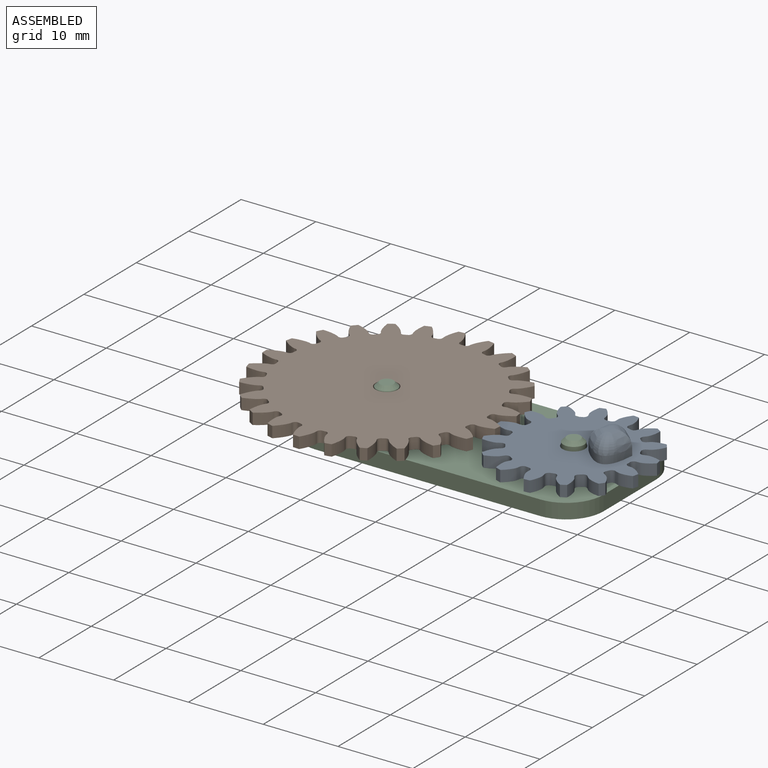
[diagram: assembled view]
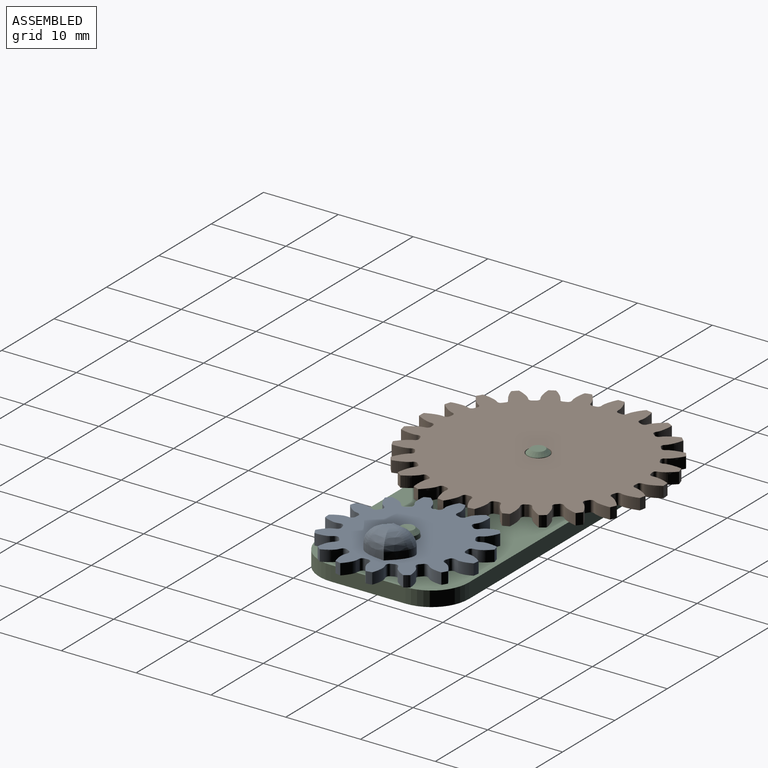
[diagram: assembled view, second angle]
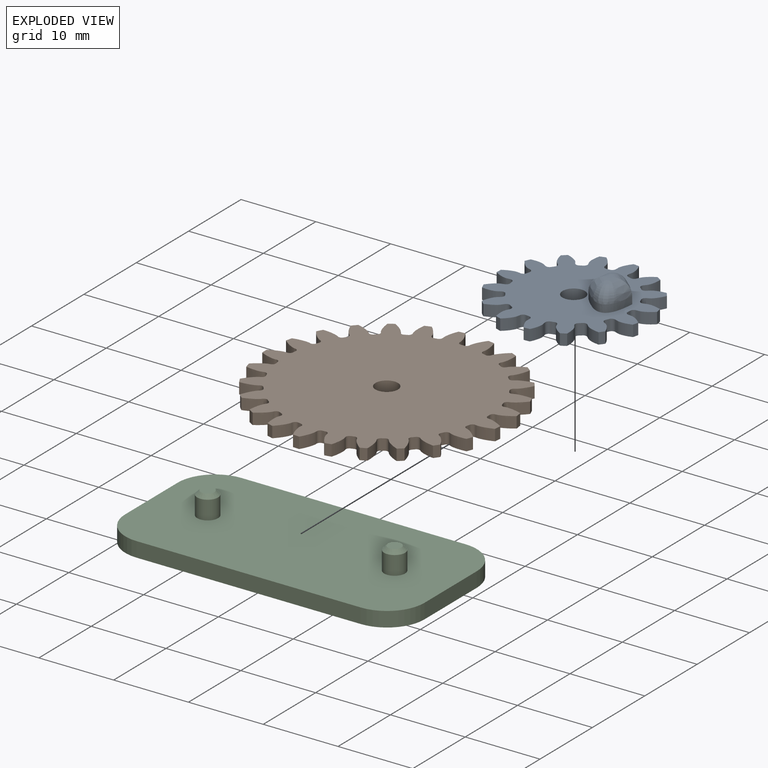
[diagram: exploded view]
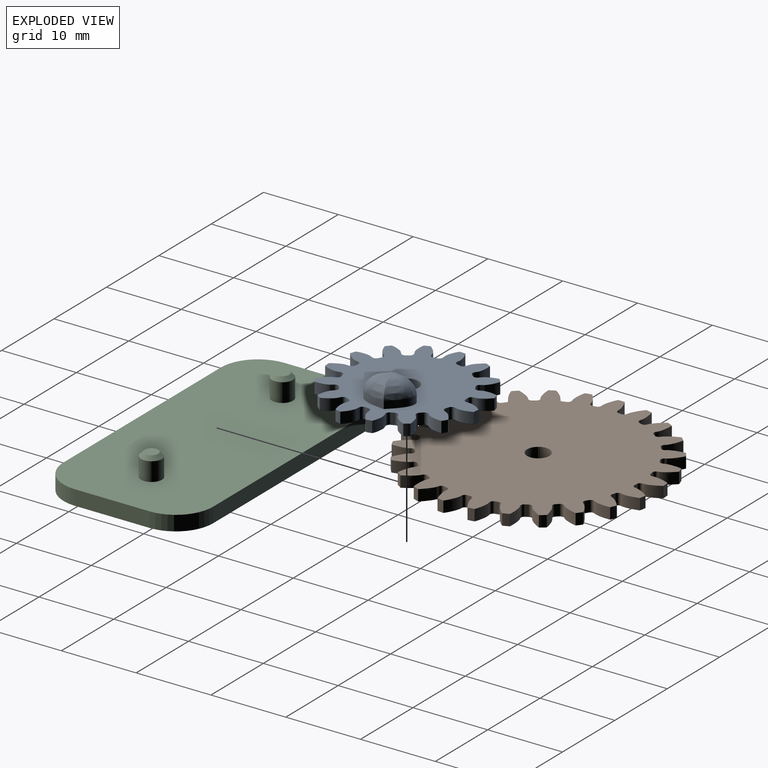
[diagram: exploded view, second angle]
ASSEMBLY  parts=3 mates=2
PART A: 102 faces, bbox 20.3x4.5x20.4 mm
  f0: plane 20.36x20.25mm, normal (0,1,0), area 220mm2, adj f1,f2,f3,f4,f5,f6,f7,f8
  f1: cylinder r=10.2mm len=1.5mm, axis (0,1,0), area 1.2mm2, adj f0,f15,f84,f88
  f2: cylinder r=10.2mm len=1.5mm, axis (0,1,0), area 1.2mm2, adj f0,f15,f74,f83
  f3: cylinder r=10.2mm len=1.5mm, axis (0,1,0), area 1.2mm2, adj f0,f15,f19,f78
  f4: cylinder r=10.2mm len=1.5mm, axis (0,1,0), area 1.2mm2, adj f0,f15,f73,f79
  f5: cylinder r=10.2mm len=1.5mm, axis (0,1,0), area 1.2mm2, adj f0,f15,f64,f68
  f6: cylinder r=10.2mm len=1.5mm, axis (0,1,0), area 1.2mm2, adj f0,f15,f63,f89
  f7: cylinder r=10.2mm len=1.5mm, axis (0,1,0), area 1.2mm2, adj f0,f15,f58,f69
  f8: cylinder r=10.2mm len=1.5mm, axis (0,1,0), area 1.2mm2, adj f0,f15,f53,f59
  f9: cylinder r=10.2mm len=1.5mm, axis (0,1,0), area 1.2mm2, adj f0,f15,f39,f48
  f10: cylinder r=10.2mm len=1.5mm, axis (0,1,0), area 1.2mm2, adj f0,f15,f43,f49
  f11: cylinder r=10.2mm len=1.5mm, axis (0,1,0), area 1.2mm2, adj f0,f15,f34,f38
  f12: cylinder r=10.2mm len=1.5mm, axis (0,1,0), area 1.2mm2, adj f0,f15,f24,f33
  f13: cylinder r=10.2mm len=1.5mm, axis (0,1,0), area 1.2mm2, adj f0,f15,f28,f54
  f14: cylinder r=10.2mm len=1.5mm, axis (0,1,0), area 1.2mm2, adj f0,f15,f23,f29
  f15: plane 20.36x20.25mm, normal (0,-1,0), area 240mm2, adj f1,f2,f3,f4,f5,f6,f7,f8
  f16: cylinder r=1.5mm len=3mm, axis (0,1,0), area 14.1mm2, adj f0,f15
  f17: cylinder r=10.2mm len=1.5mm, axis (0,1,0), area 1.2mm2, adj f0,f15,f18,f44
  f18: extruded ~2.11x1.5mm, area 3.6mm2, adj f0,f15,f17,f22
  f19: extruded ~2.11x1.5mm, area 3.6mm2, adj f0,f3,f15,f21
  f20: cylinder r=7.5mm len=1.5mm, axis (0,1,0), area 0.6mm2, adj f0,f15,f21,f22
  f21: cylinder r=0.49mm len=1.5mm, axis (0,1,0), area 1.1mm2, adj f0,f15,f19,f20
  f22: cylinder r=0.49mm len=1.5mm, axis (0,1,0), area 1.1mm2, adj f0,f15,f18,f20
  f23: extruded ~1.94x1.5mm, area 3.6mm2, adj f0,f14,f15,f27
  f24: extruded ~2.33x1.5mm, area 3.6mm2, adj f0,f12,f15,f26
  f25: cylinder r=7.5mm len=1.5mm, axis (0,1,0), area 0.6mm2, adj f0,f15,f26,f27
  f26: cylinder r=0.49mm len=1.5mm, axis (0,1,0), area 1.1mm2, adj f0,f15,f24,f25
  f27: cylinder r=0.49mm len=1.5mm, axis (0,1,0), area 1.1mm2, adj f0,f15,f23,f25
  f28: extruded ~2.3x1.5mm, area 3.6mm2, adj f0,f13,f15,f32
  f29: extruded ~2.06x1.5mm, area 3.6mm2, adj f0,f14,f15,f31
  f30: cylinder r=7.5mm len=1.5mm, axis (0,1,0), area 0.6mm2, adj f0,f15,f31,f32
  f31: cylinder r=0.49mm len=1.5mm, axis (0,1,0), area 1.1mm2, adj f0,f15,f29,f30
  f32: cylinder r=0.49mm len=1.5mm, axis (0,1,0), area 1.1mm2, adj f0,f15,f28,f30
  f33: extruded ~1.99x1.5mm, area 3.6mm2, adj f0,f12,f15,f37
  f34: extruded ~2.2x1.5mm, area 3.6mm2, adj f0,f11,f15,f36
  f35: cylinder r=7.5mm len=1.5mm, axis (0,1,0), area 0.6mm2, adj f0,f15,f36,f37
  f36: cylinder r=0.49mm len=1.5mm, axis (0,1,0), area 1.1mm2, adj f0,f15,f34,f35
  f37: cylinder r=0.49mm len=1.5mm, axis (0,1,0), area 1.1mm2, adj f0,f15,f33,f35
  f38: extruded ~2.32x1.5mm, area 3.6mm2, adj f0,f11,f15,f42
  f39: extruded ~1.69x1.62mm, area 3.6mm2, adj f0,f9,f15,f41
  f40: cylinder r=7.5mm len=1.5mm, axis (0,1,0), area 0.6mm2, adj f0,f15,f41,f42
  f41: cylinder r=0.49mm len=1.5mm, axis (0,1,0), area 1.1mm2, adj f0,f15,f39,f40
  f42: cylinder r=0.49mm len=1.5mm, axis (0,1,0), area 1.1mm2, adj f0,f15,f38,f40
  f43: extruded ~1.79x1.51mm, area 3.6mm2, adj f0,f10,f15,f47
  f44: extruded ~2.34x1.5mm, area 3.6mm2, adj f0,f15,f17,f46
  f45: cylinder r=7.5mm len=1.5mm, axis (0,1,0), area 0.6mm2, adj f0,f15,f46,f47
  f46: cylinder r=0.49mm len=1.5mm, axis (0,1,0), area 1.1mm2, adj f0,f15,f44,f45
  f47: cylinder r=0.49mm len=1.5mm, axis (0,1,0), area 1.1mm2, adj f0,f15,f43,f45
  f48: extruded ~2.25x1.5mm, area 3.6mm2, adj f0,f9,f15,f52
  f49: extruded ~2.17x1.5mm, area 3.6mm2, adj f0,f10,f15,f51
  f50: cylinder r=7.5mm len=1.5mm, axis (0,1,0), area 0.6mm2, adj f0,f15,f51,f52
  f51: cylinder r=0.49mm len=1.5mm, axis (0,1,0), area 1.1mm2, adj f0,f15,f49,f50
  f52: cylinder r=0.49mm len=1.5mm, axis (0,1,0), area 1.1mm2, adj f0,f15,f48,f50
  f53: extruded ~2.27x1.5mm, area 3.6mm2, adj f0,f8,f15,f57
  f54: extruded ~1.85x1.5mm, area 3.6mm2, adj f0,f13,f15,f56
  f55: cylinder r=7.5mm len=1.5mm, axis (0,1,0), area 0.6mm2, adj f0,f15,f56,f57
  f56: cylinder r=0.49mm len=1.5mm, axis (0,1,0), area 1.1mm2, adj f0,f15,f54,f55
  f57: cylinder r=0.49mm len=1.5mm, axis (0,1,0), area 1.1mm2, adj f0,f15,f53,f55
  f58: extruded ~1.85x1.5mm, area 3.6mm2, adj f0,f7,f15,f62
  f59: extruded ~2.27x1.5mm, area 3.6mm2, adj f0,f8,f15,f61
  f60: cylinder r=7.5mm len=1.5mm, axis (0,1,0), area 0.6mm2, adj f0,f15,f61,f62
  f61: cylinder r=0.49mm len=1.5mm, axis (0,1,0), area 1.1mm2, adj f0,f15,f59,f60
  f62: cylinder r=0.49mm len=1.5mm, axis (0,1,0), area 1.1mm2, adj f0,f15,f58,f60
  f63: extruded ~2.33x1.5mm, area 3.6mm2, adj f0,f6,f15,f67
  f64: extruded ~1.94x1.5mm, area 3.6mm2, adj f0,f5,f15,f66
  f65: cylinder r=7.5mm len=1.5mm, axis (0,1,0), area 0.6mm2, adj f0,f15,f66,f67
  f66: cylinder r=0.49mm len=1.5mm, axis (0,1,0), area 1.1mm2, adj f0,f15,f64,f65
  f67: cylinder r=0.49mm len=1.5mm, axis (0,1,0), area 1.1mm2, adj f0,f15,f63,f65
  f68: extruded ~2.06x1.5mm, area 3.6mm2, adj f0,f5,f15,f72
  f69: extruded ~2.3x1.5mm, area 3.6mm2, adj f0,f7,f15,f71
  f70: cylinder r=7.5mm len=1.5mm, axis (0,1,0), area 0.6mm2, adj f0,f15,f71,f72
  f71: cylinder r=0.49mm len=1.5mm, axis (0,1,0), area 1.1mm2, adj f0,f15,f69,f70
  f72: cylinder r=0.49mm len=1.5mm, axis (0,1,0), area 1.1mm2, adj f0,f15,f68,f70
  f73: extruded ~2.17x1.5mm, area 3.6mm2, adj f0,f4,f15,f77
  f74: extruded ~2.25x1.5mm, area 3.6mm2, adj f0,f2,f15,f76
  f75: cylinder r=7.5mm len=1.5mm, axis (0,1,0), area 0.6mm2, adj f0,f15,f76,f77
  f76: cylinder r=0.49mm len=1.5mm, axis (0,1,0), area 1.1mm2, adj f0,f15,f74,f75
  f77: cylinder r=0.49mm len=1.5mm, axis (0,1,0), area 1.1mm2, adj f0,f15,f73,f75
  f78: extruded ~2.34x1.5mm, area 3.6mm2, adj f0,f3,f15,f82
  f79: extruded ~1.79x1.51mm, area 3.6mm2, adj f0,f4,f15,f81
  f80: cylinder r=7.5mm len=1.5mm, axis (0,1,0), area 0.6mm2, adj f0,f15,f81,f82
  f81: cylinder r=0.49mm len=1.5mm, axis (0,1,0), area 1.1mm2, adj f0,f15,f79,f80
  f82: cylinder r=0.49mm len=1.5mm, axis (0,1,0), area 1.1mm2, adj f0,f15,f78,f80
  f83: extruded ~1.69x1.62mm, area 3.6mm2, adj f0,f2,f15,f87
  f84: extruded ~2.32x1.5mm, area 3.6mm2, adj f0,f1,f15,f86
  f85: cylinder r=7.5mm len=1.5mm, axis (0,1,0), area 0.6mm2, adj f0,f15,f86,f87
  f86: cylinder r=0.49mm len=1.5mm, axis (0,1,0), area 1.1mm2, adj f0,f15,f84,f85
  f87: cylinder r=0.49mm len=1.5mm, axis (0,1,0), area 1.1mm2, adj f0,f15,f83,f85
  f88: extruded ~2.2x1.5mm, area 3.6mm2, adj f0,f1,f15,f92
  f89: extruded ~1.99x1.5mm, area 3.6mm2, adj f0,f6,f15,f91
  f90: cylinder r=7.5mm len=1.5mm, axis (0,1,0), area 0.6mm2, adj f0,f15,f91,f92
  f91: cylinder r=0.49mm len=1.5mm, axis (0,1,0), area 1.1mm2, adj f0,f15,f89,f90
  f92: cylinder r=0.49mm len=1.5mm, axis (0,1,0), area 1.1mm2, adj f0,f15,f88,f90
  f93: extruded ~4.7x3.74mm, area 8.2mm2, adj f0,f94,f98,f100,f101
  f94: extruded ~4.7x3.74mm, area 8.2mm2, adj f0,f93,f96,f97,f99
  f95: plane 1.05x0.58mm, normal (0,1,0), area 0.4mm2, adj f96,f98,f99,f101
  f96: bspline ~3.2x3.1mm, area 4.8mm2, adj f94,f95,f97,f98
  f97: bspline ~2.64x2.54mm, area 4.3mm2, adj f94,f96,f99
  f98: bspline ~3.03x2.33mm, area 4.8mm2, adj f93,f95,f96,f100
  f99: bspline ~3.7x2.35mm, area 4.8mm2, adj f94,f95,f97,f101
  f100: bspline ~2.64x2.54mm, area 4.3mm2, adj f93,f98,f101
  f101: bspline ~3.3x3.19mm, area 4.8mm2, adj f93,f95,f99,f100
PART B: 153 faces, bbox 32.3x1.5x32.4 mm
  f0: cylinder r=16.2mm len=1.5mm, axis (0,1,0), area 1.3mm2, adj f24,f27,f139,f148
  f1: cylinder r=16.2mm len=1.5mm, axis (0,1,0), area 1.3mm2, adj f24,f27,f143,f149
  f2: cylinder r=16.2mm len=1.5mm, axis (0,1,0), area 1.3mm2, adj f24,f27,f134,f138
  f3: cylinder r=16.2mm len=1.5mm, axis (0,1,0), area 1.3mm2, adj f24,f27,f129,f133
  f4: cylinder r=16.2mm len=1.5mm, axis (0,1,0), area 1.3mm2, adj f24,f27,f124,f128
  f5: cylinder r=16.2mm len=1.5mm, axis (0,1,0), area 1.3mm2, adj f24,f27,f114,f123
  f6: cylinder r=16.2mm len=1.5mm, axis (0,1,0), area 1.3mm2, adj f24,f27,f109,f118
  f7: cylinder r=16.2mm len=1.5mm, axis (0,1,0), area 1.3mm2, adj f24,f27,f113,f119
  f8: cylinder r=16.2mm len=1.5mm, axis (0,1,0), area 1.3mm2, adj f24,f27,f104,f108
  f9: cylinder r=16.2mm len=1.5mm, axis (0,1,0), area 1.3mm2, adj f24,f27,f99,f103
  f10: cylinder r=16.2mm len=1.5mm, axis (0,1,0), area 1.3mm2, adj f24,f27,f94,f98
  f11: cylinder r=16.2mm len=1.5mm, axis (0,1,0), area 1.3mm2, adj f24,f27,f79,f93
  f12: cylinder r=16.2mm len=1.5mm, axis (0,1,0), area 1.3mm2, adj f24,f27,f29,f88
  f13: cylinder r=16.2mm len=1.5mm, axis (0,1,0), area 1.3mm2, adj f24,f27,f83,f89
  f14: cylinder r=16.2mm len=1.5mm, axis (0,1,0), area 1.3mm2, adj f24,f27,f74,f78
  f15: cylinder r=16.2mm len=1.5mm, axis (0,1,0), area 1.3mm2, adj f24,f27,f73,f84
  f16: cylinder r=16.2mm len=1.5mm, axis (0,1,0), area 1.3mm2, adj f24,f27,f68,f144
  f17: cylinder r=16.2mm len=1.5mm, axis (0,1,0), area 1.3mm2, adj f24,f27,f63,f69
  f18: cylinder r=16.2mm len=1.5mm, axis (0,1,0), area 1.3mm2, adj f24,f27,f58,f64
  f19: cylinder r=16.2mm len=1.5mm, axis (0,1,0), area 1.3mm2, adj f24,f27,f53,f59
  f20: cylinder r=16.2mm len=1.5mm, axis (0,1,0), area 1.3mm2, adj f24,f27,f44,f48
  f21: cylinder r=16.2mm len=1.5mm, axis (0,1,0), area 1.3mm2, adj f24,f27,f34,f43
  f22: cylinder r=16.2mm len=1.5mm, axis (0,1,0), area 1.3mm2, adj f24,f27,f38,f54
  f23: cylinder r=16.2mm len=1.5mm, axis (0,1,0), area 1.3mm2, adj f24,f27,f33,f39
  f24: plane 32.38x32.32mm, normal (0,-1,0), area 689.3mm2, adj f0,f1,f2,f3,f4,f5,f6,f7
  f25: cylinder r=1.5mm len=3mm, axis (0,1,0), area 14.1mm2, adj f24,f27
  f26: cylinder r=16.2mm len=1.5mm, axis (0,1,0), area 1.3mm2, adj f24,f27,f28,f49
  f27: plane 32.38x32.32mm, normal (0,1,0), area 689.3mm2, adj f0,f1,f2,f3,f4,f5,f6,f7
  f28: extruded ~2.19x1.5mm, area 3.6mm2, adj f24,f26,f27,f32
  f29: extruded ~2.19x1.5mm, area 3.6mm2, adj f12,f24,f27,f31
  f30: cylinder r=13.5mm len=1.5mm, axis (0,1,0), area 0.6mm2, adj f24,f27,f31,f32
  f31: cylinder r=0.45mm len=1.5mm, axis (0,1,0), area 1mm2, adj f24,f27,f29,f30
  f32: cylinder r=0.45mm len=1.5mm, axis (0,1,0), area 1mm2, adj f24,f27,f28,f30
  f33: extruded ~2.18x1.5mm, area 3.6mm2, adj f23,f24,f27,f37
  f34: extruded ~2.24x1.5mm, area 3.6mm2, adj f21,f24,f27,f36
  f35: cylinder r=13.5mm len=1.5mm, axis (0,1,0), area 0.6mm2, adj f24,f27,f36,f37
  f36: cylinder r=0.45mm len=1.5mm, axis (0,1,0), area 1mm2, adj f24,f27,f34,f35
  f37: cylinder r=0.45mm len=1.5mm, axis (0,1,0), area 1mm2, adj f24,f27,f33,f35
  f38: extruded ~2.35x1.5mm, area 3.6mm2, adj f22,f24,f27,f42
  f39: extruded ~1.96x1.5mm, area 3.6mm2, adj f23,f24,f27,f41
  f40: cylinder r=13.5mm len=1.5mm, axis (0,1,0), area 0.6mm2, adj f24,f27,f41,f42
  f41: cylinder r=0.45mm len=1.5mm, axis (0,1,0), area 1mm2, adj f24,f27,f39,f40
  f42: cylinder r=0.45mm len=1.5mm, axis (0,1,0), area 1mm2, adj f24,f27,f38,f40
  f43: extruded ~1.87x1.5mm, area 3.6mm2, adj f21,f24,f27,f47
  f44: extruded ~2.37x1.5mm, area 3.6mm2, adj f20,f24,f27,f46
  f45: cylinder r=13.5mm len=1.5mm, axis (0,1,0), area 0.6mm2, adj f24,f27,f46,f47
  f46: cylinder r=0.45mm len=1.5mm, axis (0,1,0), area 1mm2, adj f24,f27,f44,f45
  f47: cylinder r=0.45mm len=1.5mm, axis (0,1,0), area 1mm2, adj f24,f27,f43,f45
  f48: extruded ~1.89x1.5mm, area 3.6mm2, adj f20,f24,f27,f52
  f49: extruded ~2.35x1.5mm, area 3.6mm2, adj f24,f26,f27,f51
  f50: cylinder r=13.5mm len=1.5mm, axis (0,1,0), area 0.6mm2, adj f24,f27,f51,f52
  f51: cylinder r=0.45mm len=1.5mm, axis (0,1,0), area 1mm2, adj f24,f27,f49,f50
  f52: cylinder r=0.45mm len=1.5mm, axis (0,1,0), area 1mm2, adj f24,f27,f48,f50
  f53: extruded ~2.37x1.5mm, area 3.6mm2, adj f19,f24,f27,f57
  f54: extruded ~1.79x1.56mm, area 3.6mm2, adj f22,f24,f27,f56
  f55: cylinder r=13.5mm len=1.5mm, axis (0,1,0), area 0.6mm2, adj f24,f27,f56,f57
  f56: cylinder r=0.45mm len=1.5mm, axis (0,1,0), area 1mm2, adj f24,f27,f54,f55
  f57: cylinder r=0.45mm len=1.5mm, axis (0,1,0), area 1mm2, adj f24,f27,f53,f55
  f58: extruded ~2.24x1.5mm, area 3.6mm2, adj f18,f24,f27,f62
  f59: extruded ~2.13x1.5mm, area 3.6mm2, adj f19,f24,f27,f61
  f60: cylinder r=13.5mm len=1.5mm, axis (0,1,0), area 0.6mm2, adj f24,f27,f61,f62
  f61: cylinder r=0.45mm len=1.5mm, axis (0,1,0), area 1mm2, adj f24,f27,f59,f60
  f62: cylinder r=0.45mm len=1.5mm, axis (0,1,0), area 1mm2, adj f24,f27,f58,f60
  f63: extruded ~1.98x1.5mm, area 3.6mm2, adj f17,f24,f27,f67
  f64: extruded ~2.33x1.5mm, area 3.6mm2, adj f18,f24,f27,f66
  f65: cylinder r=13.5mm len=1.5mm, axis (0,1,0), area 0.6mm2, adj f24,f27,f66,f67
  f66: cylinder r=0.45mm len=1.5mm, axis (0,1,0), area 1mm2, adj f24,f27,f64,f65
  f67: cylinder r=0.45mm len=1.5mm, axis (0,1,0), area 1mm2, adj f24,f27,f63,f65
  f68: extruded ~1.78x1.58mm, area 3.6mm2, adj f16,f24,f27,f72
  f69: extruded ~2.38x1.5mm, area 3.6mm2, adj f17,f24,f27,f71
  f70: cylinder r=13.5mm len=1.5mm, axis (0,1,0), area 0.6mm2, adj f24,f27,f71,f72
  f71: cylinder r=0.45mm len=1.5mm, axis (0,1,0), area 1mm2, adj f24,f27,f69,f70
  f72: cylinder r=0.45mm len=1.5mm, axis (0,1,0), area 1mm2, adj f24,f27,f68,f70
  f73: extruded ~2.24x1.5mm, area 3.6mm2, adj f15,f24,f27,f77
  f74: extruded ~2.18x1.5mm, area 3.6mm2, adj f14,f24,f27,f76
  f75: cylinder r=13.5mm len=1.5mm, axis (0,1,0), area 0.6mm2, adj f24,f27,f76,f77
  f76: cylinder r=0.45mm len=1.5mm, axis (0,1,0), area 1mm2, adj f24,f27,f74,f75
  f77: cylinder r=0.45mm len=1.5mm, axis (0,1,0), area 1mm2, adj f24,f27,f73,f75
  f78: extruded ~1.96x1.5mm, area 3.6mm2, adj f14,f24,f27,f82
  f79: extruded ~2.35x1.5mm, area 3.6mm2, adj f11,f24,f27,f81
  f80: cylinder r=13.5mm len=1.5mm, axis (0,1,0), area 0.6mm2, adj f24,f27,f81,f82
  f81: cylinder r=0.45mm len=1.5mm, axis (0,1,0), area 1mm2, adj f24,f27,f79,f80
  f82: cylinder r=0.45mm len=1.5mm, axis (0,1,0), area 1mm2, adj f24,f27,f78,f80
  f83: extruded ~2.37x1.5mm, area 3.6mm2, adj f13,f24,f27,f87
  f84: extruded ~1.87x1.5mm, area 3.6mm2, adj f15,f24,f27,f86
  f85: cylinder r=13.5mm len=1.5mm, axis (0,1,0), area 0.6mm2, adj f24,f27,f86,f87
  f86: cylinder r=0.45mm len=1.5mm, axis (0,1,0), area 1mm2, adj f24,f27,f84,f85
  f87: cylinder r=0.45mm len=1.5mm, axis (0,1,0), area 1mm2, adj f24,f27,f83,f85
  f88: extruded ~2.35x1.5mm, area 3.6mm2, adj f12,f24,f27,f92
  f89: extruded ~1.89x1.5mm, area 3.6mm2, adj f13,f24,f27,f91
  f90: cylinder r=13.5mm len=1.5mm, axis (0,1,0), area 0.6mm2, adj f24,f27,f91,f92
  f91: cylinder r=0.45mm len=1.5mm, axis (0,1,0), area 1mm2, adj f24,f27,f89,f90
  f92: cylinder r=0.45mm len=1.5mm, axis (0,1,0), area 1mm2, adj f24,f27,f88,f90
  f93: extruded ~1.79x1.56mm, area 3.6mm2, adj f11,f24,f27,f97
  f94: extruded ~2.37x1.5mm, area 3.6mm2, adj f10,f24,f27,f96
  f95: cylinder r=13.5mm len=1.5mm, axis (0,1,0), area 0.6mm2, adj f24,f27,f96,f97
  f96: cylinder r=0.45mm len=1.5mm, axis (0,1,0), area 1mm2, adj f24,f27,f94,f95
  f97: cylinder r=0.45mm len=1.5mm, axis (0,1,0), area 1mm2, adj f24,f27,f93,f95
  f98: extruded ~2.13x1.5mm, area 3.6mm2, adj f10,f24,f27,f102
  f99: extruded ~2.24x1.5mm, area 3.6mm2, adj f9,f24,f27,f101
  f100: cylinder r=13.5mm len=1.5mm, axis (0,1,0), area 0.6mm2, adj f24,f27,f101,f102
  f101: cylinder r=0.45mm len=1.5mm, axis (0,1,0), area 1mm2, adj f24,f27,f99,f100
  f102: cylinder r=0.45mm len=1.5mm, axis (0,1,0), area 1mm2, adj f24,f27,f98,f100
  f103: extruded ~2.33x1.5mm, area 3.6mm2, adj f9,f24,f27,f107
  f104: extruded ~1.98x1.5mm, area 3.6mm2, adj f8,f24,f27,f106
  f105: cylinder r=13.5mm len=1.5mm, axis (0,1,0), area 0.6mm2, adj f24,f27,f106,f107
  f106: cylinder r=0.45mm len=1.5mm, axis (0,1,0), area 1mm2, adj f24,f27,f104,f105
  f107: cylinder r=0.45mm len=1.5mm, axis (0,1,0), area 1mm2, adj f24,f27,f103,f105
  f108: extruded ~2.38x1.5mm, area 3.6mm2, adj f8,f24,f27,f112
  f109: extruded ~1.78x1.58mm, area 3.6mm2, adj f6,f24,f27,f111
  f110: cylinder r=13.5mm len=1.5mm, axis (0,1,0), area 0.6mm2, adj f24,f27,f111,f112
  f111: cylinder r=0.45mm len=1.5mm, axis (0,1,0), area 1mm2, adj f24,f27,f109,f110
  f112: cylinder r=0.45mm len=1.5mm, axis (0,1,0), area 1mm2, adj f24,f27,f108,f110
  f113: extruded ~2.04x1.5mm, area 3.6mm2, adj f7,f24,f27,f117
  f114: extruded ~2.32x1.5mm, area 3.6mm2, adj f5,f24,f27,f116
  f115: cylinder r=13.5mm len=1.5mm, axis (0,1,0), area 0.6mm2, adj f24,f27,f116,f117
  f116: cylinder r=0.45mm len=1.5mm, axis (0,1,0), area 1mm2, adj f24,f27,f114,f115
  f117: cylinder r=0.45mm len=1.5mm, axis (0,1,0), area 1mm2, adj f24,f27,f113,f115
  f118: extruded ~2.28x1.5mm, area 3.6mm2, adj f6,f24,f27,f122
  f119: extruded ~2.12x1.5mm, area 3.6mm2, adj f7,f24,f27,f121
  f120: cylinder r=13.5mm len=1.5mm, axis (0,1,0), area 0.6mm2, adj f24,f27,f121,f122
  f121: cylinder r=0.45mm len=1.5mm, axis (0,1,0), area 1mm2, adj f24,f27,f119,f120
  f122: cylinder r=0.45mm len=1.5mm, axis (0,1,0), area 1mm2, adj f24,f27,f118,f120
  f123: extruded ~1.69x1.67mm, area 3.6mm2, adj f5,f24,f27,f127
  f124: extruded ~2.38x1.5mm, area 3.6mm2, adj f4,f24,f27,f126
  f125: cylinder r=13.5mm len=1.5mm, axis (0,1,0), area 0.6mm2, adj f24,f27,f126,f127
  f126: cylinder r=0.45mm len=1.5mm, axis (0,1,0), area 1mm2, adj f24,f27,f124,f125
  f127: cylinder r=0.45mm len=1.5mm, axis (0,1,0), area 1mm2, adj f24,f27,f123,f125
  f128: extruded ~2.06x1.5mm, area 3.6mm2, adj f4,f24,f27,f132
  f129: extruded ~2.29x1.5mm, area 3.6mm2, adj f3,f24,f27,f131
  f130: cylinder r=13.5mm len=1.5mm, axis (0,1,0), area 0.6mm2, adj f24,f27,f131,f132
  f131: cylinder r=0.45mm len=1.5mm, axis (0,1,0), area 1mm2, adj f24,f27,f129,f130
  f132: cylinder r=0.45mm len=1.5mm, axis (0,1,0), area 1mm2, adj f24,f27,f128,f130
  f133: extruded ~2.29x1.5mm, area 3.6mm2, adj f3,f24,f27,f137
  f134: extruded ~2.06x1.5mm, area 3.6mm2, adj f2,f24,f27,f136
  f135: cylinder r=13.5mm len=1.5mm, axis (0,1,0), area 0.6mm2, adj f24,f27,f136,f137
  f136: cylinder r=0.45mm len=1.5mm, axis (0,1,0), area 1mm2, adj f24,f27,f134,f135
  f137: cylinder r=0.45mm len=1.5mm, axis (0,1,0), area 1mm2, adj f24,f27,f133,f135
  f138: extruded ~2.38x1.5mm, area 3.6mm2, adj f2,f24,f27,f142
  f139: extruded ~1.69x1.67mm, area 3.6mm2, adj f0,f24,f27,f141
  f140: cylinder r=13.5mm len=1.5mm, axis (0,1,0), area 0.6mm2, adj f24,f27,f141,f142
  f141: cylinder r=0.45mm len=1.5mm, axis (0,1,0), area 1mm2, adj f24,f27,f139,f140
  f142: cylinder r=0.45mm len=1.5mm, axis (0,1,0), area 1mm2, adj f24,f27,f138,f140
  f143: extruded ~2.12x1.5mm, area 3.6mm2, adj f1,f24,f27,f147
  f144: extruded ~2.28x1.5mm, area 3.6mm2, adj f16,f24,f27,f146
  f145: cylinder r=13.5mm len=1.5mm, axis (0,1,0), area 0.6mm2, adj f24,f27,f146,f147
  f146: cylinder r=0.45mm len=1.5mm, axis (0,1,0), area 1mm2, adj f24,f27,f144,f145
  f147: cylinder r=0.45mm len=1.5mm, axis (0,1,0), area 1mm2, adj f24,f27,f143,f145
  f148: extruded ~2.32x1.5mm, area 3.6mm2, adj f0,f24,f27,f152
  f149: extruded ~2.04x1.5mm, area 3.6mm2, adj f1,f24,f27,f151
  f150: cylinder r=13.5mm len=1.5mm, axis (0,1,0), area 0.6mm2, adj f24,f27,f151,f152
  f151: cylinder r=0.45mm len=1.5mm, axis (0,1,0), area 1mm2, adj f24,f27,f149,f150
  f152: cylinder r=0.45mm len=1.5mm, axis (0,1,0), area 1mm2, adj f24,f27,f148,f150
PART C: 16 faces, bbox 40x20x5 mm
  f0: plane 10x2mm, normal (-1,0,0), area 20mm2, adj f4,f5,f12,f15
  f1: plane 30x2mm, normal (0,-1,0), area 60mm2, adj f4,f5,f12,f13
  f2: plane 10x2mm, normal (1,0,0), area 20mm2, adj f4,f5,f13,f14
  f3: plane 30x2mm, normal (0,1,0), area 60mm2, adj f4,f5,f14,f15
  f4: plane 40x20mm, normal (0,0,1), area 766.2mm2, adj f0,f1,f2,f3,f6,f8,f12,f13
  f5: plane 40x20mm, normal (0,0,-1), area 778.5mm2, adj f0,f1,f2,f3,f12,f13,f14,f15
  f6: cylinder r=1.4mm len=2.8mm, axis (0,0,-1), area 22mm2, adj f4,f10
  f7: plane 1.8x1.8mm, normal (0,0,1), area 2.5mm2, adj f10
  f8: cylinder r=1.4mm len=2.8mm, axis (0,0,-1), area 22mm2, adj f4,f11
  f9: plane 1.8x1.8mm, normal (0,0,1), area 2.5mm2, adj f11
  f10: cone r=0.9mm half-angle=45deg, axis (0,0,-1), area 5.1mm2, adj f6,f7
  f11: cone r=0.9mm half-angle=45deg, axis (0,0,-1), area 5.1mm2, adj f8,f9
  f12: cylinder r=5mm len=5mm, axis (0,0,1), area 15.7mm2, adj f0,f1,f4,f5
  f13: cylinder r=5mm len=5mm, axis (0,0,-1), area 15.7mm2, adj f1,f2,f4,f5
  f14: cylinder r=5mm len=5mm, axis (0,0,1), area 15.7mm2, adj f2,f3,f4,f5
  f15: cylinder r=5mm len=5mm, axis (0,0,-1), area 15.7mm2, adj f0,f3,f4,f5
PLACE A rot(axis=(1,-0.01,-0.01),90deg) t=(12.5,0,4)mm
PLACE B rot(axis=(-0.7,0.5,-0.5),109.8deg) t=(-12.5,0,3)mm
PLACE C at identity fixed
MATE revolute A.f90 <-> C.f8  axis (0,0,-1) through (12.5,0,2.5)mm
MATE revolute B.f150 <-> C.f6  axis (0,0,1) through (-12.5,0,4.5)mm
